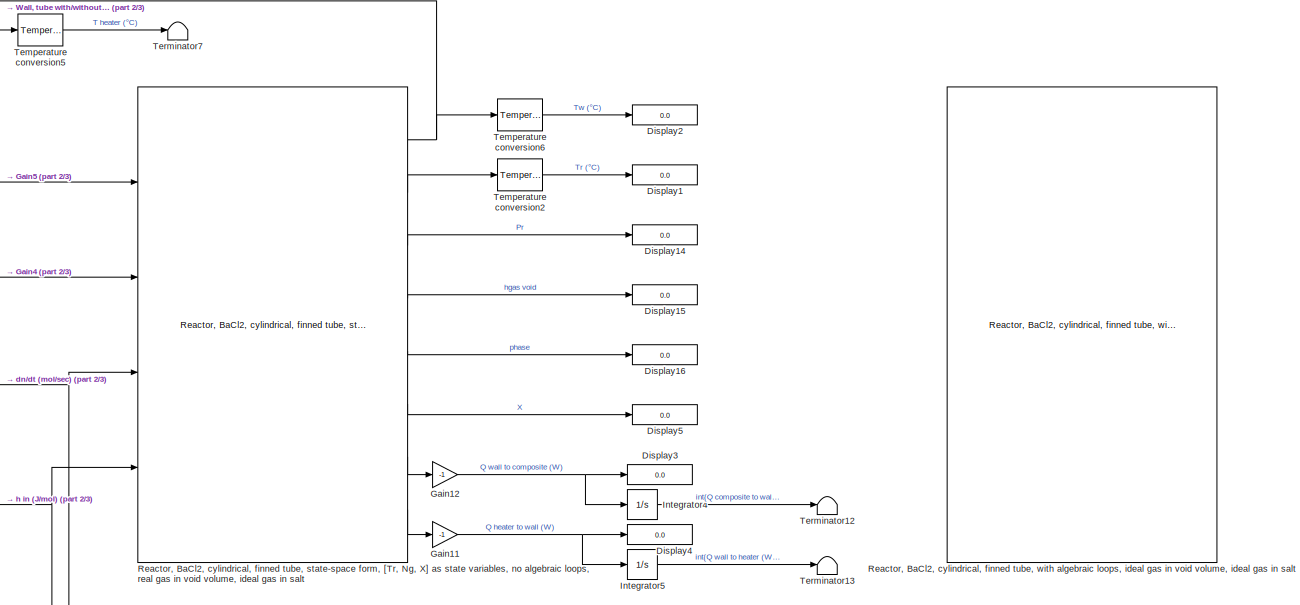
[diagram: root canvas - part 1/3, top right region]
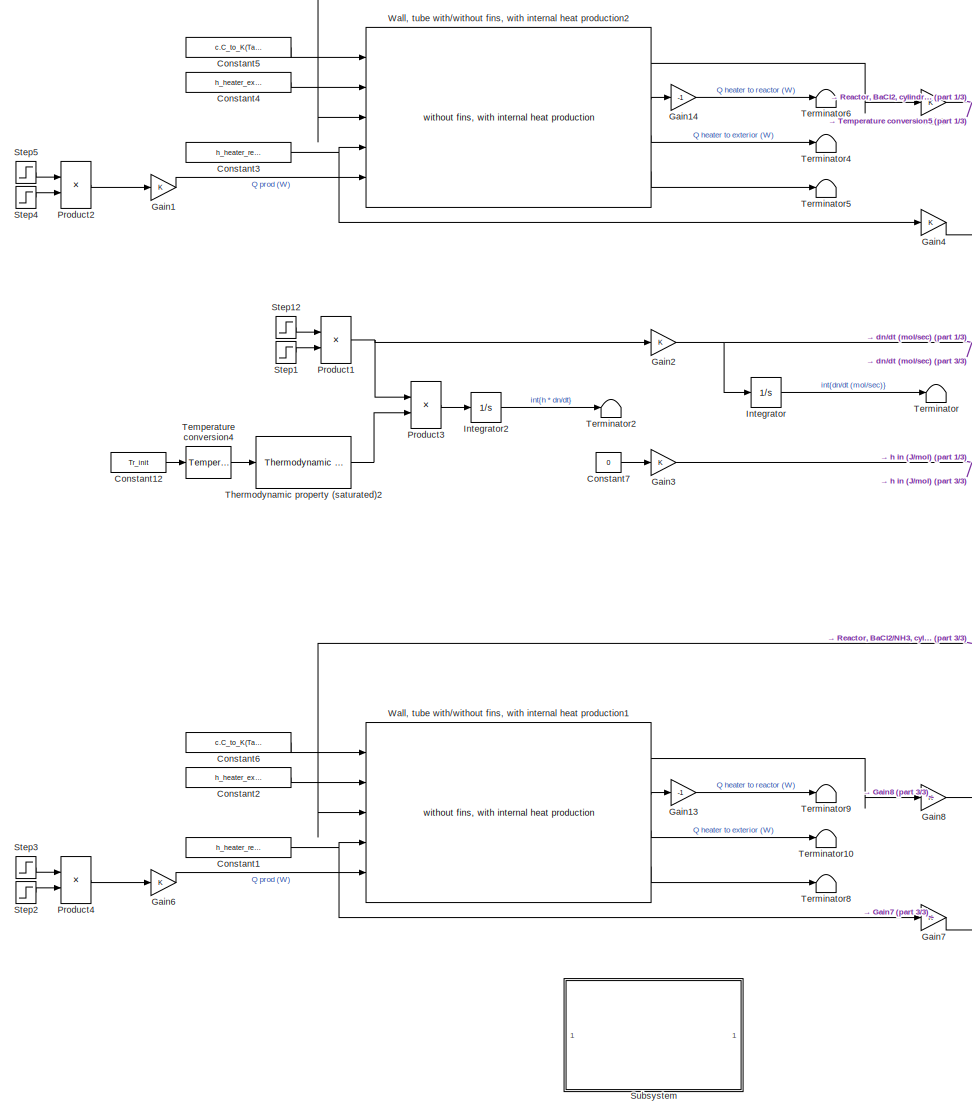
[diagram: root canvas - part 2/3, left side, full height]
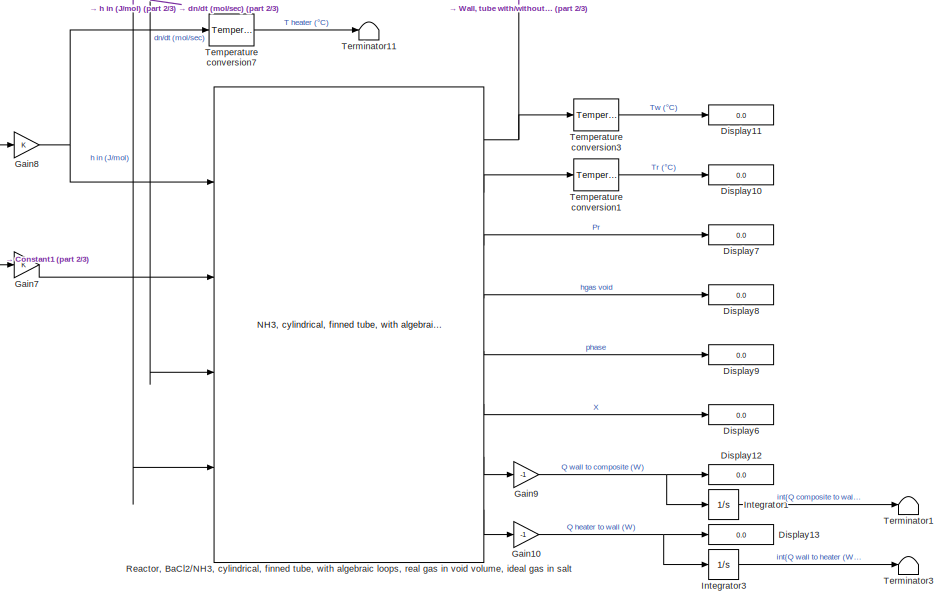
[diagram: root canvas - part 3/3, bottom center region]
MODEL slx_e0931ccb29cf
KIND model
CONFIG AbsTol = auto
CONFIG EnableMultiTasking = off
CONFIG FixedStep = auto
CONFIG MaxStep = 0.1
CONFIG MinStep = auto
CONFIG RelTol = 5e-6
CONFIG SampleTimeConstraint = Unconstrained
CONFIG Solver = ode23tb
CONFIG SolverName = ode23tb
CONFIG StartTime = 0.0
CONFIG StopTime = tEndSimul
BLOCK [Constant] Constant1
  Value = h_heater_reactor
BLOCK [Constant] Constant12
  Value = Tr_init
BLOCK [Constant] Constant2
  Value = h_heater_exterior
BLOCK [Constant] Constant3
  Commented = on
  Value = h_heater_reactor
BLOCK [Constant] Constant4
  Commented = on
  Value = h_heater_exterior
BLOCK [Constant] Constant5
  Commented = on
  Value = c.C_to_K(Tamb_C)
BLOCK [Constant] Constant6
  Value = c.C_to_K(Tamb_C)
BLOCK [Constant] Constant7
  Value = 0
BLOCK [Display] Display1
  Commented = on
  Decimation = 1
  Ports = [1]
BLOCK [Display] Display10
  Decimation = 1
  Ports = [1]
BLOCK [Display] Display11
  Decimation = 1
  Ports = [1]
BLOCK [Display] Display12
  Decimation = 1
  Ports = [1]
BLOCK [Display] Display13
  Decimation = 1
  Ports = [1]
BLOCK [Display] Display14
  Commented = on
  Decimation = 1
  Ports = [1]
BLOCK [Display] Display15
  Commented = on
  Decimation = 1
  Ports = [1]
BLOCK [Display] Display16
  Commented = on
  Decimation = 1
  Ports = [1]
BLOCK [Display] Display2
  Commented = on
  Decimation = 1
  Ports = [1]
BLOCK [Display] Display3
  Commented = on
  Decimation = 1
  Ports = [1]
BLOCK [Display] Display4
  Commented = on
  Decimation = 1
  Ports = [1]
BLOCK [Display] Display5
  Commented = on
  Decimation = 1
  Ports = [1]
BLOCK [Display] Display6
  Decimation = 1
  Ports = [1]
BLOCK [Display] Display7
  Decimation = 1
  Ports = [1]
BLOCK [Display] Display8
  Decimation = 1
  Ports = [1]
BLOCK [Display] Display9
  Decimation = 1
  Ports = [1]
BLOCK [Gain] Gain1
  Commented = on
  OutDataTypeStr = Inherit: Inherit via internal rule
  ParamDataTypeStr = Inherit: Inherit via internal rule
  SaturateOnIntegerOverflow = off
BLOCK [Gain] Gain10
  Gain = -1
  OutDataTypeStr = Inherit: Inherit via internal rule
  ParamDataTypeStr = Inherit: Inherit via internal rule
  SaturateOnIntegerOverflow = off
BLOCK [Gain] Gain11
  Commented = on
  Gain = -1
  OutDataTypeStr = Inherit: Inherit via internal rule
  ParamDataTypeStr = Inherit: Inherit via internal rule
  SaturateOnIntegerOverflow = off
BLOCK [Gain] Gain12
  Commented = on
  Gain = -1
  OutDataTypeStr = Inherit: Inherit via internal rule
  ParamDataTypeStr = Inherit: Inherit via internal rule
  SaturateOnIntegerOverflow = off
BLOCK [Gain] Gain13
  Gain = -1
  OutDataTypeStr = Inherit: Inherit via internal rule
  ParamDataTypeStr = Inherit: Inherit via internal rule
  SaturateOnIntegerOverflow = off
BLOCK [Gain] Gain14
  Commented = on
  Gain = -1
  OutDataTypeStr = Inherit: Inherit via internal rule
  ParamDataTypeStr = Inherit: Inherit via internal rule
  SaturateOnIntegerOverflow = off
BLOCK [Gain] Gain2
  OutDataTypeStr = Inherit: Inherit via internal rule
  ParamDataTypeStr = Inherit: Inherit via internal rule
  SaturateOnIntegerOverflow = off
BLOCK [Gain] Gain3
  OutDataTypeStr = Inherit: Inherit via internal rule
  ParamDataTypeStr = Inherit: Inherit via internal rule
  SaturateOnIntegerOverflow = off
BLOCK [Gain] Gain4
  Commented = on
  OutDataTypeStr = Inherit: Inherit via internal rule
  ParamDataTypeStr = Inherit: Inherit via internal rule
  SaturateOnIntegerOverflow = off
BLOCK [Gain] Gain5
  Commented = on
  OutDataTypeStr = Inherit: Inherit via internal rule
  ParamDataTypeStr = Inherit: Inherit via internal rule
  SaturateOnIntegerOverflow = off
BLOCK [Gain] Gain6
  OutDataTypeStr = Inherit: Inherit via internal rule
  ParamDataTypeStr = Inherit: Inherit via internal rule
  SaturateOnIntegerOverflow = off
BLOCK [Gain] Gain7
  OutDataTypeStr = Inherit: Inherit via internal rule
  ParamDataTypeStr = Inherit: Inherit via internal rule
  SaturateOnIntegerOverflow = off
BLOCK [Gain] Gain8
  OutDataTypeStr = Inherit: Inherit via internal rule
  ParamDataTypeStr = Inherit: Inherit via internal rule
  SaturateOnIntegerOverflow = off
BLOCK [Gain] Gain9
  Gain = -1
  OutDataTypeStr = Inherit: Inherit via internal rule
  ParamDataTypeStr = Inherit: Inherit via internal rule
  SaturateOnIntegerOverflow = off
BLOCK [Integrator] Integrator
  Ports = [1, 1]
BLOCK [Integrator] Integrator1
  Ports = [1, 1]
BLOCK [Integrator] Integrator2
  Ports = [1, 1]
BLOCK [Integrator] Integrator3
  Ports = [1, 1]
BLOCK [Integrator] Integrator4
  Commented = on
  Ports = [1, 1]
BLOCK [Integrator] Integrator5
  Commented = on
  Ports = [1, 1]
BLOCK [Product] Product1
  InputSameDT = off
  OutDataTypeStr = Inherit: Inherit via internal rule
  Ports = [2, 1]
  RndMeth = Floor
  SaturateOnIntegerOverflow = off
BLOCK [Product] Product2
  Commented = on
  InputSameDT = off
  OutDataTypeStr = Inherit: Inherit via internal rule
  Ports = [2, 1]
  RndMeth = Floor
  SaturateOnIntegerOverflow = off
BLOCK [Product] Product3
  InputSameDT = off
  OutDataTypeStr = Inherit: Inherit via internal rule
  Ports = [2, 1]
  RndMeth = Floor
  SaturateOnIntegerOverflow = off
BLOCK [Product] Product4
  InputSameDT = off
  OutDataTypeStr = Inherit: Inherit via internal rule
  Ports = [2, 1]
  RndMeth = Floor
  SaturateOnIntegerOverflow = off
BLOCK [Reference] Reactor, BaCl2, cylindrical, finned tube, state-space form, [Tr, Ng, X] as state variables, no algebraic loops, real gas in void volume, ideal gas in salt  REF=thermochemical/Reactors/Reactor, BaCl2//NH3, state-space form,  (lib defined in slx_f9e0643dc704)
[Tr, Ng, X] as state variables, no algebraic loops,
real gas in void volume, ideal gas in salt/Reactor, BaCl2, cylindrical, finned tube, state-space form,
[Tr, Ng, X] as state variables, no algebraic loops,
real gas in void volume, ideal gas in salt
  Commented = on
  Ports = [4, 8]
  SourceBlock = thermochemical/Reactors/Reactor, BaCl2//NH3, state-space form,\n[Tr, Ng, X] as state variables, no algebraic loops,\nreal gas in void volume, ideal gas in salt/Reactor, BaCl2, cylindrical, finned tube, state-space form,\n[Tr, Ng, X] as state variables, no algebraic loops,\nreal gas in void volume, ideal gas in salt
  SourceProductName = @ Thermochemical
  SourceType = SubSystem
BLOCK [Reference] Reactor, BaCl2, cylindrical, finned tube, with algebraic loops, ideal gas in void volume, ideal gas in salt  REF=thermochemical/Reactors/Reactor, BaCl2//NH3, with algebraic loops,  (lib defined in slx_f9e0643dc704)
ideal gas in void volume, ideal gas in salt/Reactor, BaCl2, cylindrical, finned tube, with algebraic loops,
ideal gas in void volume, ideal gas in salt
  Commented = on
  Ports = [4, 8]
  SourceBlock = thermochemical/Reactors/Reactor, BaCl2//NH3, with algebraic loops,\nideal gas in void volume, ideal gas in salt/Reactor, BaCl2, cylindrical, finned tube, with algebraic loops,\nideal gas in void volume, ideal gas in salt
  SourceProductName = @ Thermochemical
  SourceType = SubSystem
BLOCK [Reference] Reactor, BaCl2//NH3, cylindrical, finned tube, with algebraic loops, real gas in void volume, ideal gas in salt  REF=thermochemical/Reactors/Reactor, BaCl2//NH3, with algebraic loops,  (lib defined in slx_f9e0643dc704)
real gas in void volume, ideal gas in salt/Reactor, BaCl2//NH3, cylindrical, finned tube, with algebraic loops,
real gas in void volume, ideal gas in salt
  Ports = [4, 8]
  SourceBlock = thermochemical/Reactors/Reactor, BaCl2//NH3, with algebraic loops,\nreal gas in void volume, ideal gas in salt/Reactor, BaCl2//NH3, cylindrical, finned tube, with algebraic loops,\nreal gas in void volume, ideal gas in salt
  SourceProductName = @ Thermochemical
  SourceType = SubSystem
BLOCK [Step] Step1
  After = 0
  Before = 1
  SampleTime = 0
  Time = tEnd_dnDt
BLOCK [Step] Step12
  After = dnDt
  SampleTime = 0
  Time = tStart_dnDt
BLOCK [Step] Step2
  After = 0
  Before = 1
  SampleTime = 0
  Time = tEnd_Q
BLOCK [Step] Step3
  After = qOutIn
  SampleTime = 0
  Time = tStart_Q
BLOCK [Step] Step4
  After = 0
  Before = 1
  Commented = on
  SampleTime = 0
  Time = tEnd_Q
BLOCK [Step] Step5
  After = qOutIn
  Commented = on
  SampleTime = 0
  Time = tStart_Q
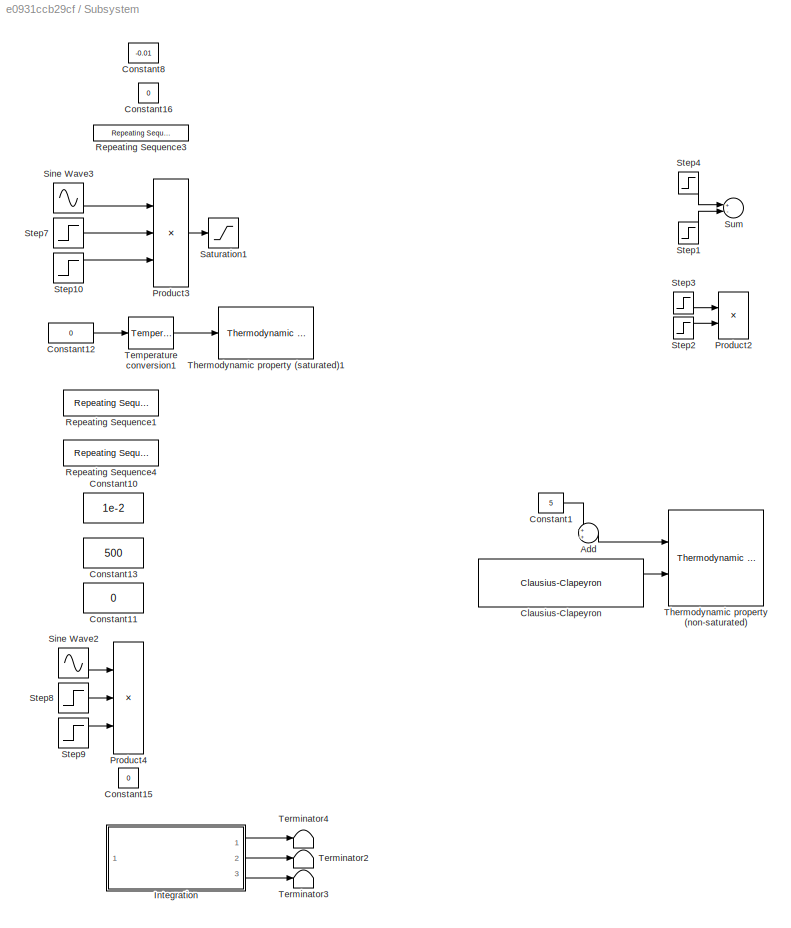
BLOCK [SubSystem] Subsystem
  Ports = []
  RequestExecContextInheritance = off
  Variant = off
BLOCK [Sum] Subsystem/Add
  IconShape = round
  InputSameDT = off
  Inputs = ++|
  OutDataTypeStr = Inherit: Inherit via internal rule
  Ports = [2, 1]
  SaturateOnIntegerOverflow = off
BLOCK [Reference] Subsystem/Clausius-Clapeyron  REF=thermochemical/Thermodynamic fluid properties/Clausius-Clapeyron  (lib defined in slx_f9e0643dc704)
  Ports = [1, 1]
  SourceBlock = thermochemical/Thermodynamic fluid properties/Clausius-Clapeyron
  SourceProductName = @ Thermochemical
  SourceType = clausius_clapeyron
BLOCK [Constant] Subsystem/Constant1
  Value = 5
BLOCK [Constant] Subsystem/Constant10
  Value = 1e-2
BLOCK [Constant] Subsystem/Constant11
  Value = 0
BLOCK [Constant] Subsystem/Constant12
  Value = 0
BLOCK [Constant] Subsystem/Constant13
  Value = 500
BLOCK [Constant] Subsystem/Constant15
  Value = 0
BLOCK [Constant] Subsystem/Constant16
  Value = 0
BLOCK [Constant] Subsystem/Constant8
  Value = -0.01
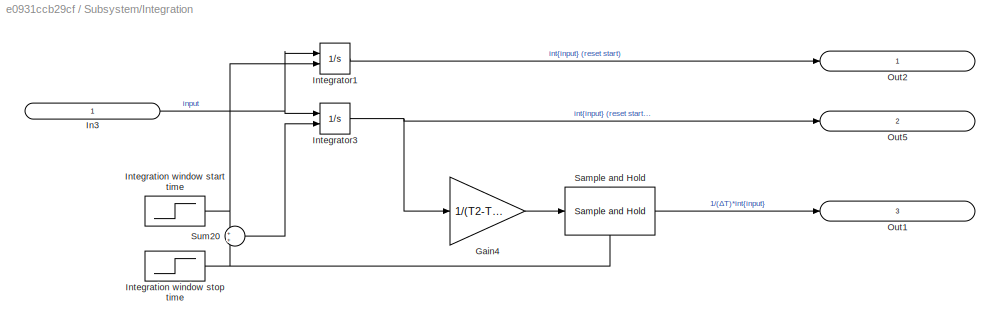
BLOCK [SubSystem] Subsystem/Integration
  Commented = on
  Ports = [1, 3]
  RequestExecContextInheritance = off
  Variant = off
BLOCK [Gain] Subsystem/Integration/Gain4
  Gain = 1/(T2-T1)
  OutDataTypeStr = Inherit: Inherit via internal rule
  ParamDataTypeStr = Inherit: Inherit via internal rule
  SaturateOnIntegerOverflow = off
BLOCK [Inport] Subsystem/Integration/In3
  IconDisplay = Signal name
BLOCK [Step] Subsystem/Integration/Integration window start time
  After = 0
  Before = 1
  SampleTime = 0
  Time = T1
BLOCK [Step] Subsystem/Integration/Integration window stop time
  SampleTime = 0
  Time = T2
BLOCK [Integrator] Subsystem/Integration/Integrator1
  ExternalReset = level hold
  Ports = [2, 1]
BLOCK [Integrator] Subsystem/Integration/Integrator3
  ExternalReset = level hold
  Ports = [2, 1]
BLOCK [Outport] Subsystem/Integration/Out1
  IconDisplay = Signal name
  Port = 3
BLOCK [Outport] Subsystem/Integration/Out2
  IconDisplay = Signal name
BLOCK [Outport] Subsystem/Integration/Out5
  IconDisplay = Signal name
  Port = 2
BLOCK [Reference] Subsystem/Integration/Sample and Hold  REF=dspsigops/Sample
and Hold
  Ports = [1, 1, 0, 1]
  SourceBlock = dspsigops/Sample\nand Hold
  SourceProductBaseCode = DS
  SourceProductName = DSP System Toolbox
  SourceType = Sample and Hold
BLOCK [Sum] Subsystem/Integration/Sum20
  IconShape = round
  InputSameDT = off
  OutDataTypeStr = Inherit: Inherit via internal rule
  Ports = [2, 1]
  SaturateOnIntegerOverflow = off
BLOCK [Product] Subsystem/Product2
  Commented = on
  InputSameDT = off
  OutDataTypeStr = Inherit: Inherit via internal rule
  Ports = [2, 1]
  RndMeth = Floor
  SaturateOnIntegerOverflow = off
BLOCK [Product] Subsystem/Product3
  InputSameDT = off
  Inputs = 3
  OutDataTypeStr = Inherit: Inherit via internal rule
  Ports = [3, 1]
  RndMeth = Floor
  SaturateOnIntegerOverflow = off
BLOCK [Product] Subsystem/Product4
  InputSameDT = off
  Inputs = 3
  OutDataTypeStr = Inherit: Inherit via internal rule
  Ports = [3, 1]
  RndMeth = Floor
  SaturateOnIntegerOverflow = off
BLOCK [Reference] Subsystem/Repeating Sequence1  REF=simulink/Sources/Repeating
Sequence
  Ports = [0, 1]
  SourceBlock = simulink/Sources/Repeating\nSequence
  SourceProductBaseCode = SL
  SourceProductName = Simulink
  SourceType = Repeating table
BLOCK [Reference] Subsystem/Repeating Sequence3  REF=simulink/Sources/Repeating
Sequence
  Ports = [0, 1]
  SourceBlock = simulink/Sources/Repeating\nSequence
  SourceProductBaseCode = SL
  SourceProductName = Simulink
  SourceType = Repeating table
BLOCK [Reference] Subsystem/Repeating Sequence4  REF=simulink/Sources/Repeating
Sequence
  Ports = [0, 1]
  SourceBlock = simulink/Sources/Repeating\nSequence
  SourceProductBaseCode = SL
  SourceProductName = Simulink
  SourceType = Repeating table
BLOCK [Saturate] Subsystem/Saturation1
  InputPortMap = u0
  LowerLimit = 0
  Ports = [1, 1]
  UpperLimit = Inf
BLOCK [Sin] Subsystem/Sine Wave2
  Amplitude = 1e3
  Frequency = 2*pi/1e2
  Ports = [0, 1]
  SampleTime = 0
BLOCK [Sin] Subsystem/Sine Wave3
  Amplitude = 0.01
  Bias = 0.01
  Frequency = 2*pi/1e2
  Ports = [0, 1]
  SampleTime = 0
BLOCK [Step] Subsystem/Step1
  After = T_heater_ON_C-T_heater_OFF_C
  Commented = on
  SampleTime = 0
  Time = tEnd
BLOCK [Step] Subsystem/Step10
  After = 0
  Before = 1
  SampleTime = 0
  Time = 2e3
BLOCK [Step] Subsystem/Step2
  After = 0
  Before = 1
  Commented = on
  SampleTime = 0
  Time = tEnd
BLOCK [Step] Subsystem/Step3
  After = qOutIn
  Commented = on
  SampleTime = 0
  Time = tStart
BLOCK [Step] Subsystem/Step4
  After = T_heater_ON_C
  Before = T_heater_OFF_C
  Commented = on
  SampleTime = 0
  Time = tStart
BLOCK [Step] Subsystem/Step7
  SampleTime = 0
  Time = 1e3
BLOCK [Step] Subsystem/Step8
  SampleTime = 0
  Time = 1e3
BLOCK [Step] Subsystem/Step9
  After = 0
  Before = 1
  SampleTime = 0
  Time = 2e3
BLOCK [Sum] Subsystem/Sum
  Commented = on
  IconShape = round
  InputSameDT = off
  Inputs = +-
  OutDataTypeStr = Inherit: Inherit via internal rule
  Ports = [2, 1]
  SaturateOnIntegerOverflow = off
BLOCK [Reference] Subsystem/Temperature conversion1  REF=thermochemical/Conversions/Temperature  (lib defined in slx_f9e0643dc704)
conversion
  Ports = [1, 1]
  SourceBlock = thermochemical/Conversions/Temperature\nconversion
  SourceProductName = @ Thermochemical
  SourceType = convert_temperature
BLOCK [Terminator] Subsystem/Terminator2
  Commented = on
BLOCK [Terminator] Subsystem/Terminator3
  Commented = on
BLOCK [Terminator] Subsystem/Terminator4
  Commented = on
BLOCK [Reference] Subsystem/Thermodynamic property (non-saturated)  REF=thermochemical/Thermodynamic fluid properties/Thermodynamic   (lib defined in slx_f9e0643dc704)
property (non-saturated)
  Ports = [2, 1]
  SourceBlock = thermochemical/Thermodynamic fluid properties/Thermodynamic \nproperty (non-saturated)
  SourceProductName = @ Thermochemical
  SourceType = thermodynamic_properties_nonsaturated
BLOCK [Reference] Subsystem/Thermodynamic property (saturated)1  REF=thermochemical/Thermodynamic fluid properties/Thermodynamic   (lib defined in slx_f9e0643dc704)
property (saturated)
  Ports = [1, 1]
  SourceBlock = thermochemical/Thermodynamic fluid properties/Thermodynamic \nproperty (saturated)
  SourceProductName = @ Thermochemical
  SourceType = thermodynamic_properties_saturated
BLOCK [Reference] Temperature conversion1  REF=thermochemical/Conversions/Temperature  (lib defined in slx_f9e0643dc704)
conversion
  Ports = [1, 1]
  SourceBlock = thermochemical/Conversions/Temperature\nconversion
  SourceProductName = @ Thermochemical
  SourceType = convert_temperature
BLOCK [Reference] Temperature conversion2  REF=thermochemical/Conversions/Temperature  (lib defined in slx_f9e0643dc704)
conversion
  Commented = on
  Ports = [1, 1]
  SourceBlock = thermochemical/Conversions/Temperature\nconversion
  SourceProductName = @ Thermochemical
  SourceType = convert_temperature
BLOCK [Reference] Temperature conversion3  REF=thermochemical/Conversions/Temperature  (lib defined in slx_f9e0643dc704)
conversion
  Ports = [1, 1]
  SourceBlock = thermochemical/Conversions/Temperature\nconversion
  SourceProductName = @ Thermochemical
  SourceType = convert_temperature
BLOCK [Reference] Temperature conversion4  REF=thermochemical/Conversions/Temperature  (lib defined in slx_f9e0643dc704)
conversion
  Ports = [1, 1]
  SourceBlock = thermochemical/Conversions/Temperature\nconversion
  SourceProductName = @ Thermochemical
  SourceType = convert_temperature
BLOCK [Reference] Temperature conversion5  REF=thermochemical/Conversions/Temperature  (lib defined in slx_f9e0643dc704)
conversion
  Commented = on
  Ports = [1, 1]
  SourceBlock = thermochemical/Conversions/Temperature\nconversion
  SourceProductName = @ Thermochemical
  SourceType = convert_temperature
BLOCK [Reference] Temperature conversion6  REF=thermochemical/Conversions/Temperature  (lib defined in slx_f9e0643dc704)
conversion
  Commented = on
  Ports = [1, 1]
  SourceBlock = thermochemical/Conversions/Temperature\nconversion
  SourceProductName = @ Thermochemical
  SourceType = convert_temperature
BLOCK [Reference] Temperature conversion7  REF=thermochemical/Conversions/Temperature  (lib defined in slx_f9e0643dc704)
conversion
  Ports = [1, 1]
  SourceBlock = thermochemical/Conversions/Temperature\nconversion
  SourceProductName = @ Thermochemical
  SourceType = convert_temperature
BLOCK [Terminator] Terminator
BLOCK [Terminator] Terminator1
BLOCK [Terminator] Terminator10
BLOCK [Terminator] Terminator11
BLOCK [Terminator] Terminator12
  Commented = on
BLOCK [Terminator] Terminator13
  Commented = on
BLOCK [Terminator] Terminator2
BLOCK [Terminator] Terminator3
BLOCK [Terminator] Terminator4
  Commented = on
BLOCK [Terminator] Terminator5
  Commented = on
BLOCK [Terminator] Terminator6
  Commented = on
BLOCK [Terminator] Terminator7
  Commented = on
BLOCK [Terminator] Terminator8
BLOCK [Terminator] Terminator9
BLOCK [Reference] Thermodynamic property (saturated)2  REF=thermochemical/Thermodynamic fluid properties/Thermodynamic   (lib defined in slx_f9e0643dc704)
property (saturated)
  Ports = [1, 1]
  SourceBlock = thermochemical/Thermodynamic fluid properties/Thermodynamic \nproperty (saturated)
  SourceProductName = @ Thermochemical
  SourceType = thermodynamic_properties_saturated
BLOCK [Reference] Wall, tube with//without fins, with internal heat production1  REF=thermochemical/Walls/Wall, tube with//without fins, with internal heat production  (lib defined in slx_f9e0643dc704)
  Ports = [5, 4]
  SourceBlock = thermochemical/Walls/Wall, tube with//without fins, with internal heat production
  SourceProductName = @ Thermochemical
  SourceType = wall_finned_tube
BLOCK [Reference] Wall, tube with//without fins, with internal heat production2  REF=thermochemical/Walls/Wall, tube with//without fins, with internal heat production  (lib defined in slx_f9e0643dc704)
  Commented = on
  Ports = [5, 4]
  SourceBlock = thermochemical/Walls/Wall, tube with//without fins, with internal heat production
  SourceProductName = @ Thermochemical
  SourceType = wall_finned_tube
LINE Constant12:1 -> Temperature conversion4:1
NET Constant1:1 -> Gain7:1, Wall, tube with//without fins, with internal heat production1:4
LINE Constant2:1 -> Wall, tube with//without fins, with internal heat production1:2
NET Constant3:1 -> Gain4:1, Wall, tube with//without fins, with internal heat production2:4
LINE Constant4:1 -> Wall, tube with//without fins, with internal heat production2:2
LINE Constant5:1 -> Wall, tube with//without fins, with internal heat production2:1
LINE Constant6:1 -> Wall, tube with//without fins, with internal heat production1:1
LINE Constant7:1 -> Gain3:1
NET Gain10:1 -> Display13:1, Integrator3:1
NET Gain11:1 -> Display4:1, Integrator5:1
NET Gain12:1 -> Display3:1, Integrator4:1
LINE Gain13:1 -> Terminator9:1
LINE Gain14:1 -> Terminator6:1
LINE Gain1:1 -> Wall, tube with//without fins, with internal heat production2:5
NET Gain2:1 -> Integrator:1, Reactor, BaCl2, cylindrical, finned tube, state-space form, [Tr, Ng, X] as state variables, no algebraic loops, real gas in void volume, ideal gas in salt:3, Reactor, BaCl2//NH3, cylindrical, finned tube, with algebraic loops, real gas in void volume, ideal gas in salt:3
NET Gain3:1 -> Reactor, BaCl2, cylindrical, finned tube, state-space form, [Tr, Ng, X] as state variables, no algebraic loops, real gas in void volume, ideal gas in salt:4, Reactor, BaCl2//NH3, cylindrical, finned tube, with algebraic loops, real gas in void volume, ideal gas in salt:4
LINE Gain4:1 -> Reactor, BaCl2, cylindrical, finned tube, state-space form, [Tr, Ng, X] as state variables, no algebraic loops, real gas in void volume, ideal gas in salt:2
NET Gain5:1 -> Reactor, BaCl2, cylindrical, finned tube, state-space form, [Tr, Ng, X] as state variables, no algebraic loops, real gas in void volume, ideal gas in salt:1, Temperature conversion5:1
LINE Gain6:1 -> Wall, tube with//without fins, with internal heat production1:5
LINE Gain7:1 -> Reactor, BaCl2//NH3, cylindrical, finned tube, with algebraic loops, real gas in void volume, ideal gas in salt:2
NET Gain8:1 -> Reactor, BaCl2//NH3, cylindrical, finned tube, with algebraic loops, real gas in void volume, ideal gas in salt:1, Temperature conversion7:1
NET Gain9:1 -> Display12:1, Integrator1:1
LINE Integrator1:1 -> Terminator1:1
LINE Integrator2:1 -> Terminator2:1
LINE Integrator3:1 -> Terminator3:1
LINE Integrator4:1 -> Terminator12:1
LINE Integrator5:1 -> Terminator13:1
LINE Integrator:1 -> Terminator:1
NET Product1:1 -> Gain2:1, Product3:1
LINE Product2:1 -> Gain1:1
LINE Product3:1 -> Integrator2:1
LINE Product4:1 -> Gain6:1
NET Reactor, BaCl2, cylindrical, finned tube, state-space form, [Tr, Ng, X] as state variables, no algebraic loops, real gas in void volume, ideal gas in salt:1 -> Temperature conversion6:1, Wall, tube with//without fins, with internal heat production2:3
LINE Reactor, BaCl2, cylindrical, finned tube, state-space form, [Tr, Ng, X] as state variables, no algebraic loops, real gas in void volume, ideal gas in salt:2 -> Temperature conversion2:1
LINE Reactor, BaCl2, cylindrical, finned tube, state-space form, [Tr, Ng, X] as state variables, no algebraic loops, real gas in void volume, ideal gas in salt:3 -> Display14:1
LINE Reactor, BaCl2, cylindrical, finned tube, state-space form, [Tr, Ng, X] as state variables, no algebraic loops, real gas in void volume, ideal gas in salt:4 -> Display15:1
LINE Reactor, BaCl2, cylindrical, finned tube, state-space form, [Tr, Ng, X] as state variables, no algebraic loops, real gas in void volume, ideal gas in salt:5 -> Display16:1
LINE Reactor, BaCl2, cylindrical, finned tube, state-space form, [Tr, Ng, X] as state variables, no algebraic loops, real gas in void volume, ideal gas in salt:6 -> Display5:1
LINE Reactor, BaCl2, cylindrical, finned tube, state-space form, [Tr, Ng, X] as state variables, no algebraic loops, real gas in void volume, ideal gas in salt:7 -> Gain12:1
LINE Reactor, BaCl2, cylindrical, finned tube, state-space form, [Tr, Ng, X] as state variables, no algebraic loops, real gas in void volume, ideal gas in salt:8 -> Gain11:1
NET Reactor, BaCl2//NH3, cylindrical, finned tube, with algebraic loops, real gas in void volume, ideal gas in salt:1 -> Temperature conversion3:1, Wall, tube with//without fins, with internal heat production1:3
LINE Reactor, BaCl2//NH3, cylindrical, finned tube, with algebraic loops, real gas in void volume, ideal gas in salt:2 -> Temperature conversion1:1
LINE Reactor, BaCl2//NH3, cylindrical, finned tube, with algebraic loops, real gas in void volume, ideal gas in salt:3 -> Display7:1
LINE Reactor, BaCl2//NH3, cylindrical, finned tube, with algebraic loops, real gas in void volume, ideal gas in salt:4 -> Display8:1
LINE Reactor, BaCl2//NH3, cylindrical, finned tube, with algebraic loops, real gas in void volume, ideal gas in salt:5 -> Display9:1
LINE Reactor, BaCl2//NH3, cylindrical, finned tube, with algebraic loops, real gas in void volume, ideal gas in salt:6 -> Display6:1
LINE Reactor, BaCl2//NH3, cylindrical, finned tube, with algebraic loops, real gas in void volume, ideal gas in salt:7 -> Gain9:1
LINE Reactor, BaCl2//NH3, cylindrical, finned tube, with algebraic loops, real gas in void volume, ideal gas in salt:8 -> Gain10:1
LINE Step12:1 -> Product1:1
LINE Step1:1 -> Product1:2
LINE Step2:1 -> Product4:2
LINE Step3:1 -> Product4:1
LINE Step4:1 -> Product2:2
LINE Step5:1 -> Product2:1
LINE Subsystem/Add:1 -> Subsystem/Thermodynamic property (non-saturated):1
LINE Subsystem/Clausius-Clapeyron:1 -> Subsystem/Thermodynamic property (non-saturated):2
LINE Subsystem/Constant12:1 -> Subsystem/Temperature conversion1:1
LINE Subsystem/Constant1:1 -> Subsystem/Add:1
LINE Subsystem/Integration/Gain4:1 -> Subsystem/Integration/Sample and Hold:1
NET Subsystem/Integration/In3:1 -> Subsystem/Integration/Integrator1:1, Subsystem/Integration/Integrator3:1
NET Subsystem/Integration/Integration window start time:1 -> Subsystem/Integration/Integrator1:2, Subsystem/Integration/Sum20:1
NET Subsystem/Integration/Integration window stop time:1 -> Subsystem/Integration/Sample and Hold:trigger, Subsystem/Integration/Sum20:2
LINE Subsystem/Integration/Integrator1:1 -> Subsystem/Integration/Out2:1
NET Subsystem/Integration/Integrator3:1 -> Subsystem/Integration/Gain4:1, Subsystem/Integration/Out5:1
LINE Subsystem/Integration/Sample and Hold:1 -> Subsystem/Integration/Out1:1
LINE Subsystem/Integration/Sum20:1 -> Subsystem/Integration/Integrator3:2
LINE Subsystem/Integration:1 -> Subsystem/Terminator4:1
LINE Subsystem/Integration:2 -> Subsystem/Terminator2:1
LINE Subsystem/Integration:3 -> Subsystem/Terminator3:1
LINE Subsystem/Product3:1 -> Subsystem/Saturation1:1
LINE Subsystem/Sine Wave2:1 -> Subsystem/Product4:1
LINE Subsystem/Sine Wave3:1 -> Subsystem/Product3:1
LINE Subsystem/Step10:1 -> Subsystem/Product3:3
LINE Subsystem/Step1:1 -> Subsystem/Sum:2
LINE Subsystem/Step2:1 -> Subsystem/Product2:2
LINE Subsystem/Step3:1 -> Subsystem/Product2:1
LINE Subsystem/Step4:1 -> Subsystem/Sum:1
LINE Subsystem/Step7:1 -> Subsystem/Product3:2
LINE Subsystem/Step8:1 -> Subsystem/Product4:2
LINE Subsystem/Step9:1 -> Subsystem/Product4:3
LINE Subsystem/Temperature conversion1:1 -> Subsystem/Thermodynamic property (saturated)1:1
LINE Temperature conversion1:1 -> Display10:1
LINE Temperature conversion2:1 -> Display1:1
LINE Temperature conversion3:1 -> Display11:1
LINE Temperature conversion4:1 -> Thermodynamic property (saturated)2:1
LINE Temperature conversion5:1 -> Terminator7:1
LINE Temperature conversion6:1 -> Display2:1
LINE Temperature conversion7:1 -> Terminator11:1
LINE Thermodynamic property (saturated)2:1 -> Product3:2
LINE Wall, tube with//without fins, with internal heat production1:1 -> Gain8:1
LINE Wall, tube with//without fins, with internal heat production1:2 -> Gain13:1
LINE Wall, tube with//without fins, with internal heat production1:3 -> Terminator10:1
LINE Wall, tube with//without fins, with internal heat production1:4 -> Terminator8:1
LINE Wall, tube with//without fins, with internal heat production2:1 -> Gain5:1
LINE Wall, tube with//without fins, with internal heat production2:2 -> Gain14:1
LINE Wall, tube with//without fins, with internal heat production2:3 -> Terminator4:1
LINE Wall, tube with//without fins, with internal heat production2:4 -> Terminator5:1
note: NET lines group one-source signal fan-out (src -> all destinations, sorted); 1:1 wires keep LINE
